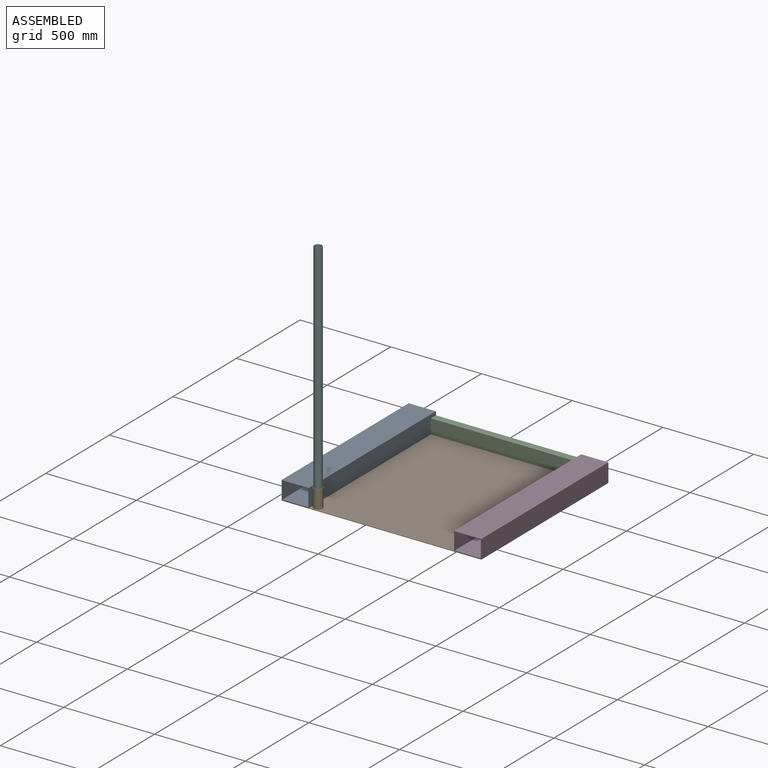
[diagram: assembled view]
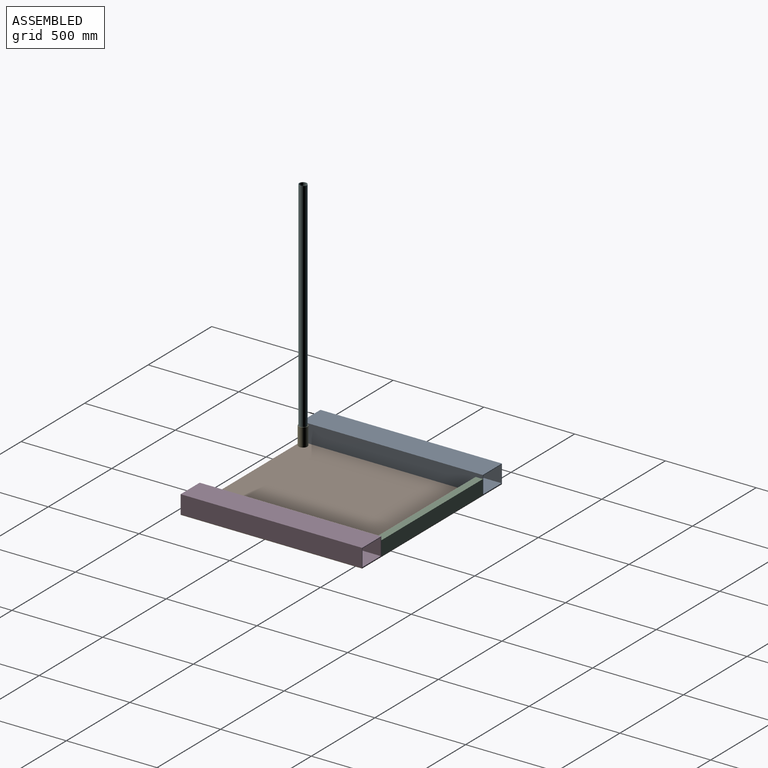
[diagram: assembled view, second angle]
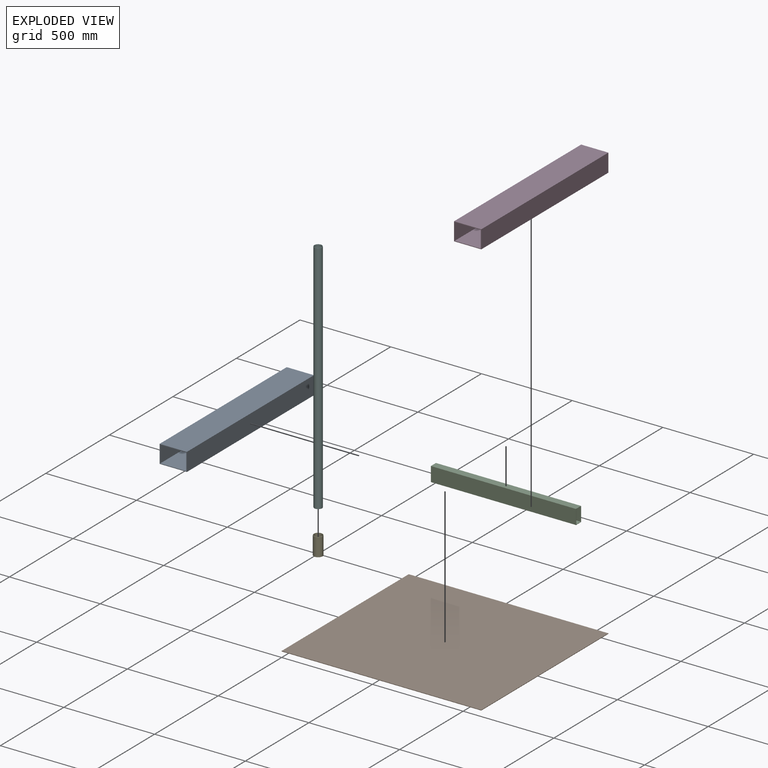
[diagram: exploded view]
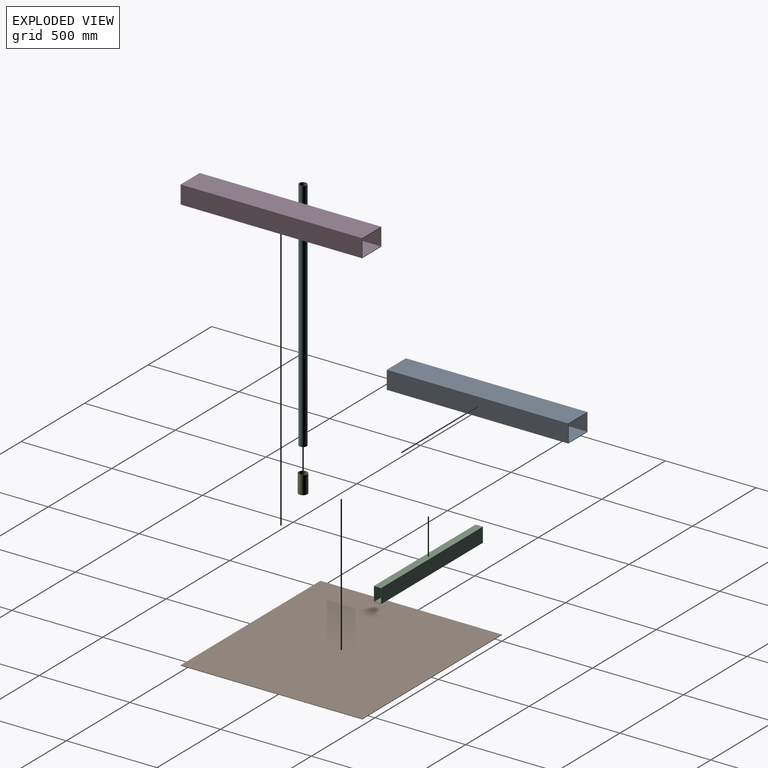
[diagram: exploded view, second angle]
ASSEMBLY  parts=6 mates=5
PART A: 10 faces, bbox 150x1000x100 mm
  f0: plane 150x100mm, normal (0,1,0), area 1559mm2, adj f2,f3,f4,f5,f6,f7,f8,f9
  f1: plane 150x100mm, normal (0,-1,0), area 1559mm2, adj f2,f3,f4,f5,f6,f7,f8,f9
  f2: plane 1000x100mm, normal (-1,0,0), area 100000mm2, adj f0,f1,f3,f5
  f3: plane 1000x150mm, normal (0,0,-1), area 150000mm2, adj f0,f1,f2,f4
  f4: plane 1000x100mm, normal (1,0,0), area 100000mm2, adj f0,f1,f3,f5
  f5: plane 1000x150mm, normal (0,0,1), area 150000mm2, adj f0,f1,f2,f4
  f6: plane 1000x93.6mm, normal (1,0,0), area 93600mm2, adj f0,f1,f7,f9
  f7: plane 1000x143.6mm, normal (0,0,1), area 143600mm2, adj f0,f1,f6,f8
  f8: plane 1000x93.6mm, normal (-1,0,0), area 93600mm2, adj f0,f1,f7,f9
  f9: plane 1000x143.6mm, normal (0,0,-1), area 143600mm2, adj f0,f1,f6,f8
PART B: 6 faces, bbox 1100x1000x3 mm
  f0: plane 1000x3mm, normal (-1,0,0), area 3000mm2, adj f1,f3,f4,f5
  f1: plane 1100x3mm, normal (0,-1,0), area 3300mm2, adj f0,f2,f4,f5
  f2: plane 1000x3mm, normal (1,0,0), area 3000mm2, adj f1,f3,f4,f5
  f3: plane 1100x3mm, normal (0,1,0), area 3300mm2, adj f0,f2,f4,f5
  f4: plane 1100x1000mm, normal (0,0,1), area 1100000mm2, adj f0,f1,f2,f3
  f5: plane 1100x1000mm, normal (0,0,-1), area 1100000mm2, adj f0,f1,f2,f3
PART C: 10 faces, bbox 40x800x80 mm
  f0: plane 80x40mm, normal (0,1,0), area 464mm2, adj f2,f3,f4,f5,f6,f7,f8,f9
  f1: plane 80x40mm, normal (0,-1,0), area 464mm2, adj f2,f3,f4,f5,f6,f7,f8,f9
  f2: plane 800x80mm, normal (-1,0,0), area 64000mm2, adj f0,f1,f3,f5
  f3: plane 800x40mm, normal (0,0,-1), area 32000mm2, adj f0,f1,f2,f4
  f4: plane 800x80mm, normal (1,0,0), area 64000mm2, adj f0,f1,f3,f5
  f5: plane 800x40mm, normal (0,0,1), area 32000mm2, adj f0,f1,f2,f4
  f6: plane 800x76mm, normal (1,0,0), area 60800mm2, adj f0,f1,f7,f9
  f7: plane 800x36mm, normal (0,0,1), area 28800mm2, adj f0,f1,f6,f8
  f8: plane 800x76mm, normal (-1,0,0), area 60800mm2, adj f0,f1,f7,f9
  f9: plane 800x36mm, normal (0,0,-1), area 28800mm2, adj f0,f1,f6,f8
PART D: same geometry as A
PART E: 4 faces, bbox 48.4x100x48.4 mm
  f0: cylinder r=24.2mm len=100mm, axis (0,-1,0), area 15205.3mm2, adj f1,f2
  f1: plane 48.4x48.4mm, normal (0,1,0), area 291.5mm2, adj f0,f3
  f2: plane 48.4x48.4mm, normal (0,-1,0), area 291.5mm2, adj f0,f3
  f3: cylinder r=22.2mm len=100mm, axis (0,-1,0), area 13948.7mm2, adj f1,f2
PART F: 4 faces, bbox 42.5x1300x42.5 mm
  f0: cylinder r=21.25mm len=1300mm, axis (0,-1,0), area 173573mm2, adj f1,f2
  f1: plane 42.5x42.5mm, normal (0,1,0), area 230.2mm2, adj f0,f3
  f2: plane 42.5x42.5mm, normal (0,-1,0), area 230.2mm2, adj f0,f3
  f3: cylinder r=19.45mm len=1300mm, axis (0,-1,0), area 158870.3mm2, adj f1,f2
PLACE A t=(0,0,3)mm
PLACE B at identity
PLACE C rot(axis=(-0.71,-0.71,0),180deg) t=(150,960,83)mm
PLACE D t=(950,0,3)mm
PLACE E rot(axis=(1,0,0),90deg) t=(180,30,3)mm
PLACE F rot(axis=(1,0,0),90deg) t=(155,54.95,4)mm
MATE fastened A.f3 <-> B.f4  axis (0,0,1) through (0,0,3)mm
MATE slider F.f0 <-> E.f0  axis (0,0,-1) through (180,30,4)mm
MATE fastened C.f5 <-> A.f3  axis (0,0,-1) through (150,1000,3)mm
MATE fastened D.f3 <-> B.f4  axis (0,0,1) through (1100,0,3)mm
MATE fastened E.f0 <-> A.f3  axis (0,0,-1) through (180,30,3)mm
